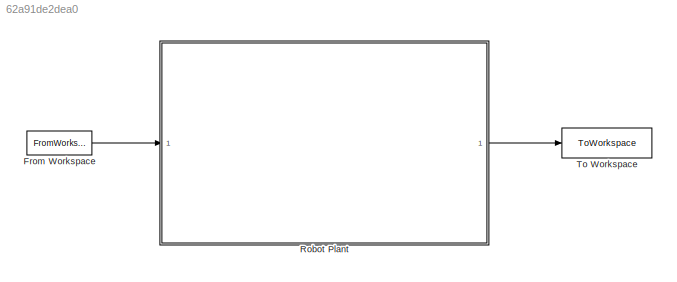
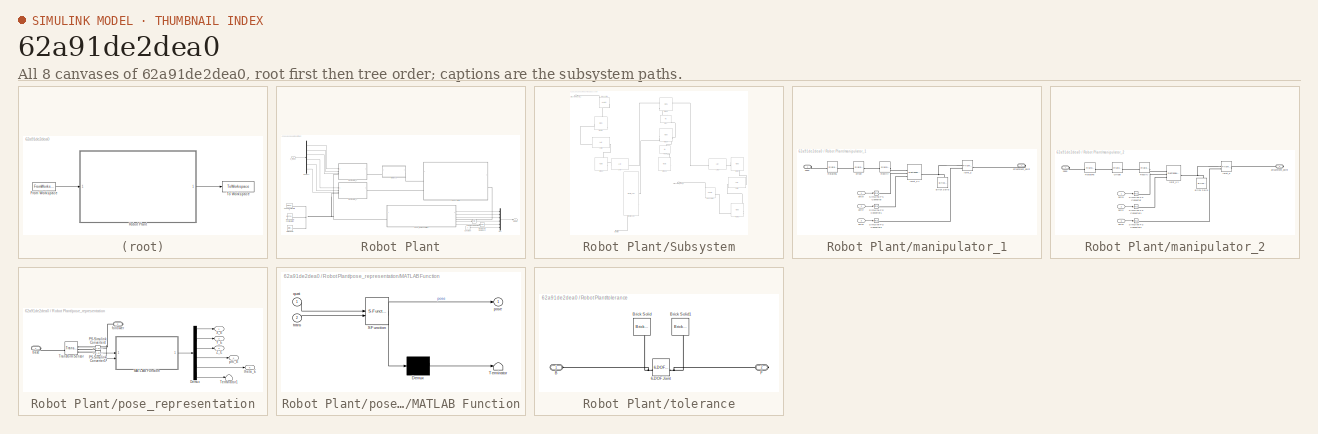
[diagram: thumbnail index - all 8 canvases of the model, root first then tree order]
MODEL slx_62a91de2dea0
KIND model
CONFIG AbsTol = 1e-4
CONFIG EnableMultiTasking = off
CONFIG FixedStep = 1e-4
CONFIG MaxStep = auto
CONFIG MinStep = auto
CONFIG RelTol = 1e-3
CONFIG SampleTimeConstraint = Unconstrained
CONFIG SolverName = ode15s
CONFIG StartTime = 0.0
CONFIG StopTime = 0.01
BLOCK [FromWorkspace] From Workspace
  VariableName = q_input
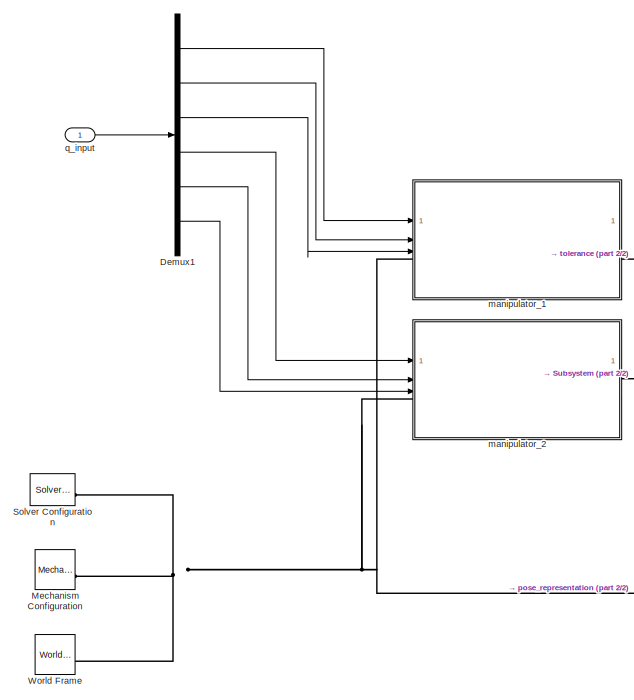
[diagram: Robot Plant - part 1/2, left side, full height]
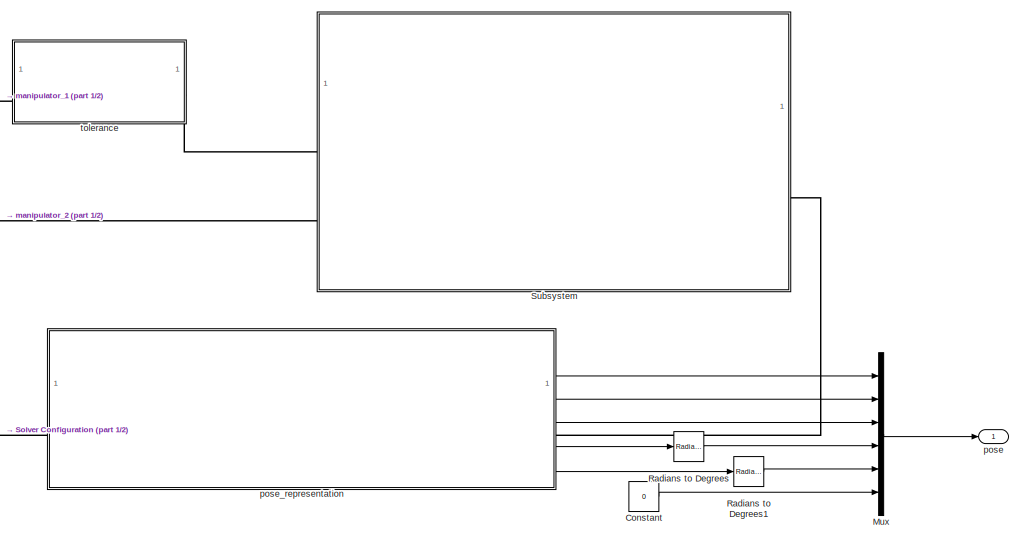
[diagram: Robot Plant - part 2/2, right side, full height]
BLOCK [SubSystem] Robot Plant
  TreatAsAtomicUnit = on
BLOCK [Constant] Robot Plant/Constant
  Value = 0
BLOCK [Demux] Robot Plant/Demux1
  Outputs = 6
BLOCK [Reference] Robot Plant/Mechanism Configuration  REF=sm_lib/Utilities/Mechanism
Configuration
  SourceBlock = sm_lib/Utilities/Mechanism\nConfiguration
  SourceType = Mechanism\nConfiguration
BLOCK [Mux] Robot Plant/Mux
  DisplayOption = bar
  Inputs = 6
BLOCK [Reference] Robot Plant/Radians to Degrees  REF=simulink_extras/Transformations/Radians
to Degrees
  SourceBlock = simulink_extras/Transformations/Radians\nto Degrees
  SourceType = RadiansToDegrees
BLOCK [Reference] Robot Plant/Radians to Degrees1  REF=simulink_extras/Transformations/Radians
to Degrees
  SourceBlock = simulink_extras/Transformations/Radians\nto Degrees
  SourceType = RadiansToDegrees
BLOCK [Reference] Robot Plant/Solver Configuration  REF=nesl_utility/Solver
Configuration
  SourceBlock = nesl_utility/Solver\nConfiguration
  SourceType = Solver\nConfiguration
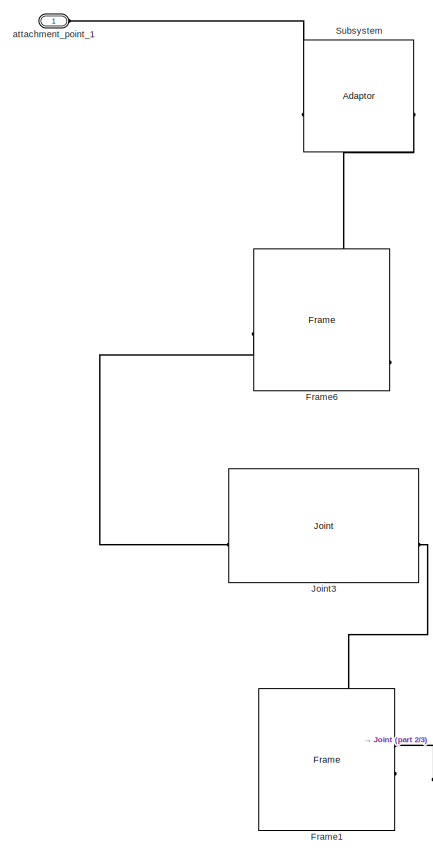
[diagram: Robot Plant/Subsystem - part 1/3, top left region]
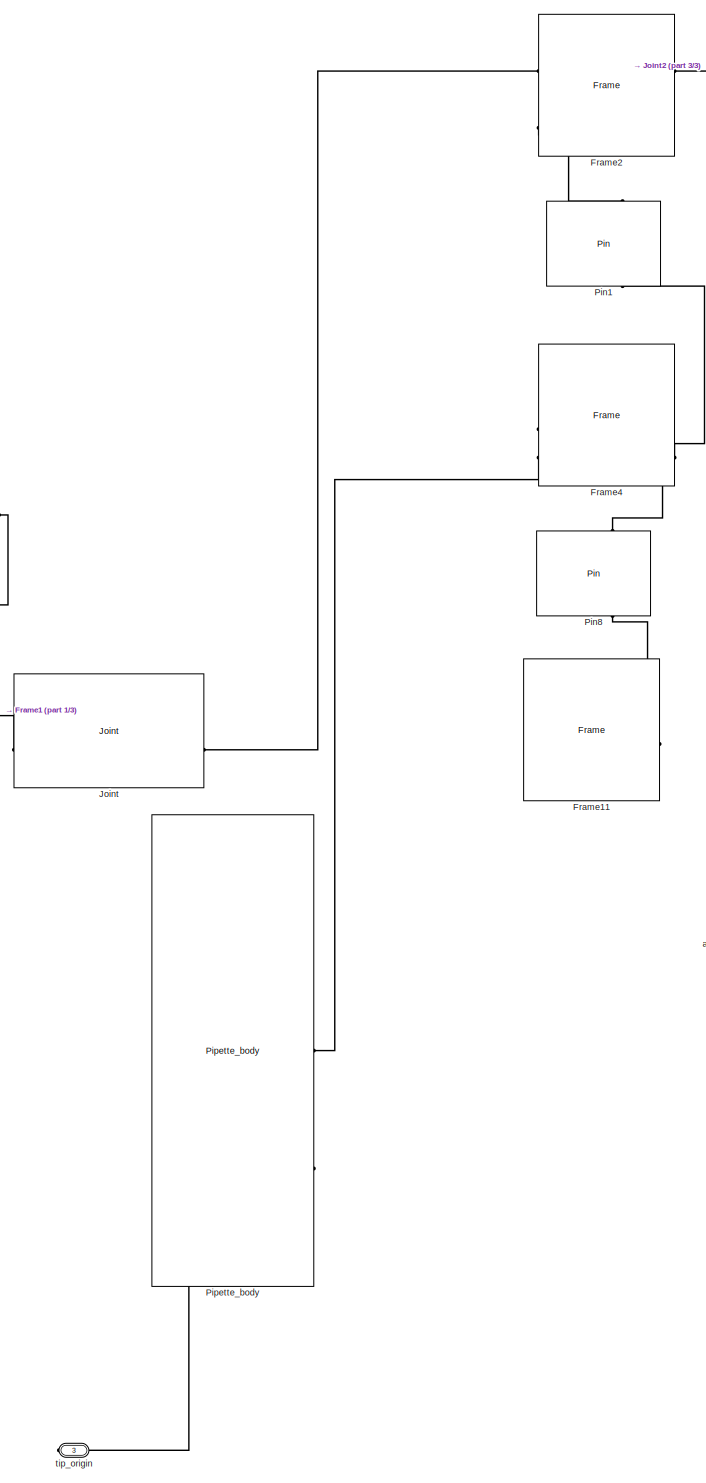
[diagram: Robot Plant/Subsystem - part 2/3, center side, full height]
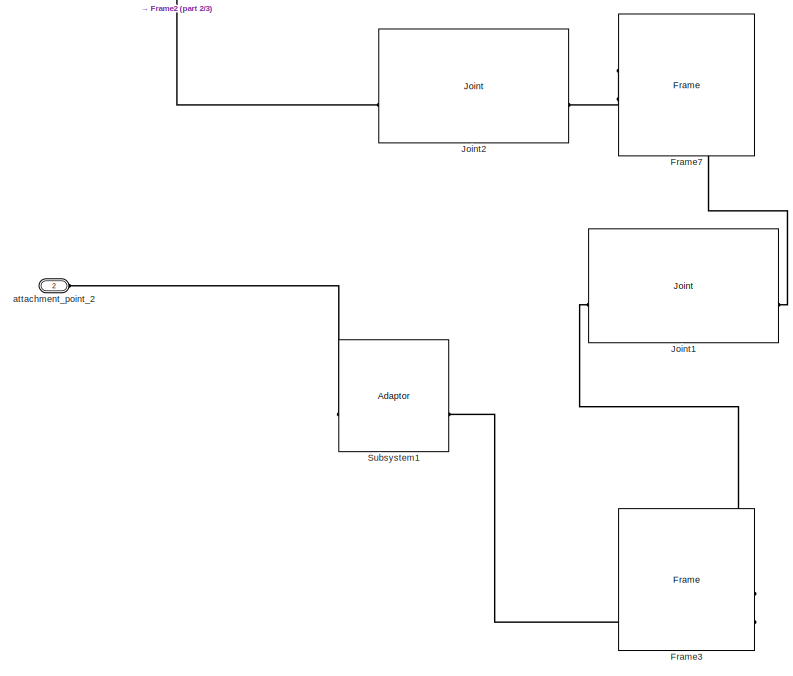
[diagram: Robot Plant/Subsystem - part 3/3, bottom right region]
BLOCK [SubSystem] Robot Plant/Subsystem
BLOCK [Reference] Robot Plant/Subsystem/Frame1  REF=mrex_hypercube_modules/Frame  (lib defined in slx_b86d9e98f719)
  SourceBlock = mrex_hypercube_modules/Frame
BLOCK [Reference] Robot Plant/Subsystem/Frame11  REF=mrex_hypercube_modules/Frame  (lib defined in slx_b86d9e98f719)
  SourceBlock = mrex_hypercube_modules/Frame
BLOCK [Reference] Robot Plant/Subsystem/Frame2  REF=mrex_hypercube_modules/Frame  (lib defined in slx_b86d9e98f719)
  SourceBlock = mrex_hypercube_modules/Frame
BLOCK [Reference] Robot Plant/Subsystem/Frame3  REF=mrex_hypercube_modules/Frame  (lib defined in slx_b86d9e98f719)
  SourceBlock = mrex_hypercube_modules/Frame
BLOCK [Reference] Robot Plant/Subsystem/Frame4  REF=mrex_hypercube_modules/Frame  (lib defined in slx_b86d9e98f719)
  SourceBlock = mrex_hypercube_modules/Frame
BLOCK [Reference] Robot Plant/Subsystem/Frame6  REF=mrex_hypercube_modules/Frame  (lib defined in slx_b86d9e98f719)
  SourceBlock = mrex_hypercube_modules/Frame
BLOCK [Reference] Robot Plant/Subsystem/Frame7  REF=mrex_hypercube_modules/Frame  (lib defined in slx_b86d9e98f719)
  SourceBlock = mrex_hypercube_modules/Frame
BLOCK [Reference] Robot Plant/Subsystem/Joint  REF=mrex_hypercube_modules/Joint  (lib defined in slx_b86d9e98f719)
  SourceBlock = mrex_hypercube_modules/Joint
BLOCK [Reference] Robot Plant/Subsystem/Joint1  REF=mrex_hypercube_modules/Joint  (lib defined in slx_b86d9e98f719)
  SourceBlock = mrex_hypercube_modules/Joint
BLOCK [Reference] Robot Plant/Subsystem/Joint2  REF=mrex_hypercube_modules/Joint  (lib defined in slx_b86d9e98f719)
  SourceBlock = mrex_hypercube_modules/Joint
BLOCK [Reference] Robot Plant/Subsystem/Joint3  REF=mrex_hypercube_modules/Joint  (lib defined in slx_b86d9e98f719)
  SourceBlock = mrex_hypercube_modules/Joint
BLOCK [Reference] Robot Plant/Subsystem/Pin1  REF=mrex_hypercube_modules/Pin  (lib defined in slx_b86d9e98f719)
  NameLocation = right
  SourceBlock = mrex_hypercube_modules/Pin
BLOCK [Reference] Robot Plant/Subsystem/Pin8  REF=mrex_hypercube_modules/Pin  (lib defined in slx_b86d9e98f719)
  NameLocation = right
  SourceBlock = mrex_hypercube_modules/Pin
BLOCK [Reference] Robot Plant/Subsystem/Pipette_body  REF=mrex_hypercube_modules/Pipette_body  (lib defined in slx_b86d9e98f719)
  SourceBlock = mrex_hypercube_modules/Pipette_body
BLOCK [Reference] Robot Plant/Subsystem/Subsystem  REF=mrex_hypercube_modules/Adaptor  (lib defined in slx_b86d9e98f719)
  SourceBlock = mrex_hypercube_modules/Adaptor
  SourceType = SubSystem
BLOCK [Reference] Robot Plant/Subsystem/Subsystem1  REF=mrex_hypercube_modules/Adaptor  (lib defined in slx_b86d9e98f719)
  SourceBlock = mrex_hypercube_modules/Adaptor
  SourceType = SubSystem
BLOCK [PMIOPort] Robot Plant/Subsystem/attachment_point_1
  Side = Left
BLOCK [PMIOPort] Robot Plant/Subsystem/attachment_point_2
  Port = 2
  Side = Left
BLOCK [PMIOPort] Robot Plant/Subsystem/tip_origin
  Port = 3
  Side = Right
BLOCK [Reference] Robot Plant/World Frame  REF=sm_lib/Frames and
Transforms/World Frame
  SourceBlock = sm_lib/Frames and\nTransforms/World Frame
  SourceType = World Frame
BLOCK [SubSystem] Robot Plant/manipulator_1
BLOCK [Reference] Robot Plant/manipulator_1/Brick Solid  REF=sm_lib/Body Elements/Brick Solid
  NameLocation = right
  SourceBlock = sm_lib/Body Elements/Brick Solid
  SourceType = Brick Solid
BLOCK [Reference] Robot Plant/manipulator_1/Rectify  REF=sm_lib/Frames and
Transforms/Rigid
Transform
  SourceBlock = sm_lib/Frames and\nTransforms/Rigid\nTransform
  SourceType = Rigid\nTransform
BLOCK [Reference] Robot Plant/manipulator_1/Rotate45  REF=sm_lib/Frames and
Transforms/Rigid
Transform
  SourceBlock = sm_lib/Frames and\nTransforms/Rigid\nTransform
  SourceType = Rigid\nTransform
BLOCK [Reference] Robot Plant/manipulator_1/Simulink-PS Converter  REF=nesl_utility/Simulink-PS
Converter
  SourceBlock = nesl_utility/Simulink-PS\nConverter
  SourceType = Simulink-PS\nConverter
BLOCK [Reference] Robot Plant/manipulator_1/Simulink-PS Converter1  REF=nesl_utility/Simulink-PS
Converter
  SourceBlock = nesl_utility/Simulink-PS\nConverter
  SourceType = Simulink-PS\nConverter
BLOCK [Reference] Robot Plant/manipulator_1/Simulink-PS Converter2  REF=nesl_utility/Simulink-PS
Converter
  SourceBlock = nesl_utility/Simulink-PS\nConverter
  SourceType = Simulink-PS\nConverter
BLOCK [PMIOPort] Robot Plant/manipulator_1/attachment_point
  Port = 2
  Side = Right
BLOCK [Inport] Robot Plant/manipulator_1/axisX
BLOCK [Inport] Robot Plant/manipulator_1/axisY
  Port = 2
BLOCK [Inport] Robot Plant/manipulator_1/axisZ
  Port = 3
BLOCK [PMIOPort] Robot Plant/manipulator_1/base
  Side = Left
BLOCK [Reference] Robot Plant/manipulator_1/joint_XY  REF=sm_lib/Joints/Rectangular
Joint
  SourceBlock = sm_lib/Joints/Rectangular\nJoint
  SourceType = Rectangular\nJoint
BLOCK [Reference] Robot Plant/manipulator_1/joint_Z  REF=sm_lib/Joints/Prismatic
Joint
  SourceBlock = sm_lib/Joints/Prismatic\nJoint
  SourceType = Prismatic\nJoint
BLOCK [Reference] Robot Plant/manipulator_1/offset  REF=sm_lib/Frames and
Transforms/Rigid
Transform
  SourceBlock = sm_lib/Frames and\nTransforms/Rigid\nTransform
  SourceType = Rigid\nTransform
BLOCK [SubSystem] Robot Plant/manipulator_2
BLOCK [Reference] Robot Plant/manipulator_2/Brick Solid  REF=sm_lib/Body Elements/Brick Solid
  NameLocation = right
  SourceBlock = sm_lib/Body Elements/Brick Solid
  SourceType = Brick Solid
BLOCK [Reference] Robot Plant/manipulator_2/Offset  REF=sm_lib/Frames and
Transforms/Rigid
Transform
  SourceBlock = sm_lib/Frames and\nTransforms/Rigid\nTransform
  SourceType = Rigid\nTransform
BLOCK [Reference] Robot Plant/manipulator_2/Rectify  REF=sm_lib/Frames and
Transforms/Rigid
Transform
  SourceBlock = sm_lib/Frames and\nTransforms/Rigid\nTransform
  SourceType = Rigid\nTransform
BLOCK [Reference] Robot Plant/manipulator_2/Rotate45  REF=sm_lib/Frames and
Transforms/Rigid
Transform
  SourceBlock = sm_lib/Frames and\nTransforms/Rigid\nTransform
  SourceType = Rigid\nTransform
BLOCK [Reference] Robot Plant/manipulator_2/Simulink-PS Converter  REF=nesl_utility/Simulink-PS
Converter
  SourceBlock = nesl_utility/Simulink-PS\nConverter
  SourceType = Simulink-PS\nConverter
BLOCK [Reference] Robot Plant/manipulator_2/Simulink-PS Converter1  REF=nesl_utility/Simulink-PS
Converter
  SourceBlock = nesl_utility/Simulink-PS\nConverter
  SourceType = Simulink-PS\nConverter
BLOCK [Reference] Robot Plant/manipulator_2/Simulink-PS Converter2  REF=nesl_utility/Simulink-PS
Converter
  SourceBlock = nesl_utility/Simulink-PS\nConverter
  SourceType = Simulink-PS\nConverter
BLOCK [PMIOPort] Robot Plant/manipulator_2/attachment_point
  Port = 2
  Side = Right
BLOCK [Inport] Robot Plant/manipulator_2/axisX
BLOCK [Inport] Robot Plant/manipulator_2/axisY
  Port = 2
BLOCK [Inport] Robot Plant/manipulator_2/axisZ
  Port = 3
BLOCK [PMIOPort] Robot Plant/manipulator_2/base
  Side = Left
BLOCK [Reference] Robot Plant/manipulator_2/joint_XY  REF=sm_lib/Joints/Rectangular
Joint
  SourceBlock = sm_lib/Joints/Rectangular\nJoint
  SourceType = Rectangular\nJoint
BLOCK [Reference] Robot Plant/manipulator_2/joint_Z  REF=sm_lib/Joints/Prismatic
Joint
  SourceBlock = sm_lib/Joints/Prismatic\nJoint
  SourceType = Prismatic\nJoint
BLOCK [Outport] Robot Plant/pose
BLOCK [SubSystem] Robot Plant/pose_representation
  PortSchema = {"entries":[{"content":{"sides":[{"content":{"connectorIds":["LConn1"]},"type":"ConnectorPlacement.EquallySpacedRectSide","uuid":"02e57747-24a3-4a3d-ac70-b9d8e16f9037"},{"content":{"connectorIds":["RConn1","Out1","Out2","Out3","Out4","Out5"],"side":"RIGHT"},"type":"ConnectorPlacement.EquallySpacedRectSide","uuid":"ddef7646-e4ed-4c4e-b109-c7fd03bfd576"},{"content":{"side":"TOP"},"type":"ConnectorPl...<+262ch>
BLOCK [Demux] Robot Plant/pose_representation/Demux
  Outputs = 6
BLOCK [SubSystem] Robot Plant/pose_representation/MATLAB Function
  ErrorFcn = Stateflow.Translate.translate
  PermitHierarchicalResolution = ExplicitOnly
  SFBlockType = MATLAB Function
  TreatAsAtomicUnit = on
BLOCK [Demux] Robot Plant/pose_representation/MATLAB Function/ Demux 
  Outputs = 1
BLOCK [S-Function] Robot Plant/pose_representation/MATLAB Function/ SFunction 
  EnableBusSupport = off
  FunctionName = sf_sfun
  PortCounts = [2 2]
  SFcnIsStateOwnerBlock = off
  SFunctionDeploymentMode = off
  Tag = Stateflow S-Function 2
BLOCK [Terminator] Robot Plant/pose_representation/MATLAB Function/ Terminator 
BLOCK [Outport] Robot Plant/pose_representation/MATLAB Function/pose
BLOCK [Inport] Robot Plant/pose_representation/MATLAB Function/quat
BLOCK [Inport] Robot Plant/pose_representation/MATLAB Function/trans
  Port = 2
BLOCK [Reference] Robot Plant/pose_representation/PS-Simulink Converter4  REF=nesl_utility/PS-Simulink
Converter
  SourceBlock = nesl_utility/PS-Simulink\nConverter
  SourceType = PS-Simulink\nConverter
BLOCK [Reference] Robot Plant/pose_representation/PS-Simulink Converter5  REF=nesl_utility/PS-Simulink
Converter
  SourceBlock = nesl_utility/PS-Simulink\nConverter
  SourceType = PS-Simulink\nConverter
BLOCK [Terminator] Robot Plant/pose_representation/Terminator1
BLOCK [Reference] Robot Plant/pose_representation/Transform Sensor  REF=sm_lib/Frames and
Transforms/Transform
Sensor
  SourceBlock = sm_lib/Frames and\nTransforms/Transform\nSensor
  SourceType = Transform\nSensor
BLOCK [Outport] Robot Plant/pose_representation/X_E
BLOCK [Outport] Robot Plant/pose_representation/Y_E
  Port = 2
BLOCK [Outport] Robot Plant/pose_representation/Z_E
  Port = 3
BLOCK [PMIOPort] Robot Plant/pose_representation/base
  Side = Left
BLOCK [PMIOPort] Robot Plant/pose_representation/follower
  Port = 2
  Side = Right
BLOCK [Outport] Robot Plant/pose_representation/phi_E
  Port = 4
BLOCK [Outport] Robot Plant/pose_representation/theta_E
  Port = 5
BLOCK [Inport] Robot Plant/q_input
BLOCK [SubSystem] Robot Plant/tolerance
BLOCK [Reference] Robot Plant/tolerance/6-DOF Joint  REF=sm_lib/Joints/6-DOF Joint
  SourceBlock = sm_lib/Joints/6-DOF Joint
  SourceType = 6-DOF Joint
BLOCK [PMIOPort] Robot Plant/tolerance/B
  Side = Left
BLOCK [Reference] Robot Plant/tolerance/Brick Solid  REF=sm_lib/Body Elements/Brick Solid
  NameLocation = left
  SourceBlock = sm_lib/Body Elements/Brick Solid
  SourceType = Brick Solid
BLOCK [Reference] Robot Plant/tolerance/Brick Solid1  REF=sm_lib/Body Elements/Brick Solid
  NameLocation = left
  SourceBlock = sm_lib/Body Elements/Brick Solid
  SourceType = Brick Solid
BLOCK [PMIOPort] Robot Plant/tolerance/F
  Port = 2
  Side = Right
BLOCK [ToWorkspace] To Workspace
  FixptAsFi = on
  MaxDataPoints = inf
  SampleTime = -1
  SaveFormat = Timeseries
  VariableName = pose
LINE From Workspace:1 -> Robot Plant:1
LINE Robot Plant/Constant:1 -> Robot Plant/Mux:6
LINE Robot Plant/Demux1:1 -> Robot Plant/manipulator_1:1
LINE Robot Plant/Demux1:2 -> Robot Plant/manipulator_1:2
LINE Robot Plant/Demux1:3 -> Robot Plant/manipulator_1:3
LINE Robot Plant/Demux1:4 -> Robot Plant/manipulator_2:1
LINE Robot Plant/Demux1:5 -> Robot Plant/manipulator_2:2
LINE Robot Plant/Demux1:6 -> Robot Plant/manipulator_2:3
LINE Robot Plant/Mux:1 -> Robot Plant/pose:1
LINE Robot Plant/Radians to Degrees1:1 -> Robot Plant/Mux:5
LINE Robot Plant/Radians to Degrees:1 -> Robot Plant/Mux:4
LINE Robot Plant/manipulator_1/axisX:1 -> Robot Plant/manipulator_1/Simulink-PS Converter:1
LINE Robot Plant/manipulator_1/axisY:1 -> Robot Plant/manipulator_1/Simulink-PS Converter1:1
LINE Robot Plant/manipulator_1/axisZ:1 -> Robot Plant/manipulator_1/Simulink-PS Converter2:1
LINE Robot Plant/manipulator_2/axisX:1 -> Robot Plant/manipulator_2/Simulink-PS Converter:1
LINE Robot Plant/manipulator_2/axisY:1 -> Robot Plant/manipulator_2/Simulink-PS Converter1:1
LINE Robot Plant/manipulator_2/axisZ:1 -> Robot Plant/manipulator_2/Simulink-PS Converter2:1
LINE Robot Plant/pose_representation/Demux:1 -> Robot Plant/pose_representation/X_E:1
LINE Robot Plant/pose_representation/Demux:2 -> Robot Plant/pose_representation/Y_E:1
LINE Robot Plant/pose_representation/Demux:3 -> Robot Plant/pose_representation/Z_E:1
LINE Robot Plant/pose_representation/Demux:4 -> Robot Plant/pose_representation/phi_E:1
LINE Robot Plant/pose_representation/Demux:5 -> Robot Plant/pose_representation/theta_E:1
LINE Robot Plant/pose_representation/Demux:6 -> Robot Plant/pose_representation/Terminator1:1
LINE Robot Plant/pose_representation/MATLAB Function:1 -> Robot Plant/pose_representation/Demux:1
LINE Robot Plant/pose_representation/PS-Simulink Converter4:1 -> Robot Plant/pose_representation/MATLAB Function:1
LINE Robot Plant/pose_representation/PS-Simulink Converter5:1 -> Robot Plant/pose_representation/MATLAB Function:2
LINE Robot Plant/pose_representation:1 -> Robot Plant/Mux:1
LINE Robot Plant/pose_representation:2 -> Robot Plant/Mux:2
LINE Robot Plant/pose_representation:3 -> Robot Plant/Mux:3
LINE Robot Plant/pose_representation:4 -> Robot Plant/Radians to Degrees:1
LINE Robot Plant/pose_representation:5 -> Robot Plant/Radians to Degrees1:1
LINE Robot Plant/q_input:1 -> Robot Plant/Demux1:1
LINE Robot Plant:1 -> To Workspace:1
PNET net1: Robot Plant/Mechanism Configuration:RConn1 -- Robot Plant/Solver Configuration:RConn1 -- Robot Plant/World Frame:RConn1 -- Robot Plant/manipulator_1:LConn1 -- Robot Plant/manipulator_2:LConn1 -- Robot Plant/pose_representation:LConn1
PLINE Robot Plant/Subsystem/Frame11:LConn2 -- Robot Plant/Subsystem/Pin8:LConn1
PLINE Robot Plant/Subsystem/Frame1:LConn1 -- Robot Plant/Subsystem/Joint:LConn1
PLINE Robot Plant/Subsystem/Frame1:LConn2 -- Robot Plant/Subsystem/Joint3:RConn1
PLINE Robot Plant/Subsystem/Frame2:LConn1 -- Robot Plant/Subsystem/Joint2:LConn1
PLINE Robot Plant/Subsystem/Frame2:RConn1 -- Robot Plant/Subsystem/Joint:RConn1
PLINE Robot Plant/Subsystem/Frame2:RConn3 -- Robot Plant/Subsystem/Pin1:RConn1
PLINE Robot Plant/Subsystem/Frame3:LConn2 -- Robot Plant/Subsystem/Joint1:LConn1
PLINE Robot Plant/Subsystem/Frame3:LConn3 -- Robot Plant/Subsystem/Subsystem1:RConn1
PLINE Robot Plant/Subsystem/Frame4:LConn3 -- Robot Plant/Subsystem/Pin1:LConn1
PLINE Robot Plant/Subsystem/Frame4:RConn2 -- Robot Plant/Subsystem/Pin8:RConn1
PLINE Robot Plant/Subsystem/Frame4:RConn3 -- Robot Plant/Subsystem/Pipette_body:RConn1
PLINE Robot Plant/Subsystem/Frame6:LConn3 -- Robot Plant/Subsystem/Subsystem:RConn1
PLINE Robot Plant/Subsystem/Frame6:RConn2 -- Robot Plant/Subsystem/Joint3:LConn1
PLINE Robot Plant/Subsystem/Frame7:RConn1 -- Robot Plant/Subsystem/Joint2:RConn1
PLINE Robot Plant/Subsystem/Frame7:RConn2 -- Robot Plant/Subsystem/Joint1:RConn1
PLINE Robot Plant/Subsystem/Pipette_body:RConn2 -- Robot Plant/Subsystem/tip_origin:RConn1
PLINE Robot Plant/Subsystem/Subsystem1:LConn1 -- Robot Plant/Subsystem/attachment_point_2:RConn1
PLINE Robot Plant/Subsystem/Subsystem:LConn1 -- Robot Plant/Subsystem/attachment_point_1:RConn1
PLINE Robot Plant/Subsystem:LConn1 -- Robot Plant/tolerance:RConn1
PLINE Robot Plant/Subsystem:LConn2 -- Robot Plant/manipulator_2:RConn1
PLINE Robot Plant/Subsystem:RConn1 -- Robot Plant/pose_representation:RConn1
PNET net2: Robot Plant/manipulator_1/Brick Solid:RConn1 -- Robot Plant/manipulator_1/joint_XY:RConn1 -- Robot Plant/manipulator_1/joint_Z:LConn1
PLINE Robot Plant/manipulator_1/Rectify:LConn1 -- Robot Plant/manipulator_1/offset:RConn1
PLINE Robot Plant/manipulator_1/Rectify:RConn1 -- Robot Plant/manipulator_1/joint_XY:LConn1
PLINE Robot Plant/manipulator_1/Rotate45:LConn1 -- Robot Plant/manipulator_1/base:RConn1
PLINE Robot Plant/manipulator_1/Rotate45:RConn1 -- Robot Plant/manipulator_1/offset:LConn1
PLINE Robot Plant/manipulator_1/Simulink-PS Converter1:RConn1 -- Robot Plant/manipulator_1/joint_XY:LConn3
PLINE Robot Plant/manipulator_1/Simulink-PS Converter2:RConn1 -- Robot Plant/manipulator_1/joint_Z:LConn2
PLINE Robot Plant/manipulator_1/Simulink-PS Converter:RConn1 -- Robot Plant/manipulator_1/joint_XY:LConn2
PLINE Robot Plant/manipulator_1/attachment_point:RConn1 -- Robot Plant/manipulator_1/joint_Z:RConn1
PLINE Robot Plant/manipulator_1:RConn1 -- Robot Plant/tolerance:LConn1
PNET net3: Robot Plant/manipulator_2/Brick Solid:RConn1 -- Robot Plant/manipulator_2/joint_XY:RConn1 -- Robot Plant/manipulator_2/joint_Z:LConn1
PLINE Robot Plant/manipulator_2/Offset:LConn1 -- Robot Plant/manipulator_2/Rotate45:RConn1
PLINE Robot Plant/manipulator_2/Offset:RConn1 -- Robot Plant/manipulator_2/Rectify:LConn1
PLINE Robot Plant/manipulator_2/Rectify:RConn1 -- Robot Plant/manipulator_2/joint_XY:LConn1
PLINE Robot Plant/manipulator_2/Rotate45:LConn1 -- Robot Plant/manipulator_2/base:RConn1
PLINE Robot Plant/manipulator_2/Simulink-PS Converter1:RConn1 -- Robot Plant/manipulator_2/joint_XY:LConn3
PLINE Robot Plant/manipulator_2/Simulink-PS Converter2:RConn1 -- Robot Plant/manipulator_2/joint_Z:LConn2
PLINE Robot Plant/manipulator_2/Simulink-PS Converter:RConn1 -- Robot Plant/manipulator_2/joint_XY:LConn2
PLINE Robot Plant/manipulator_2/attachment_point:RConn1 -- Robot Plant/manipulator_2/joint_Z:RConn1
PLINE Robot Plant/pose_representation/PS-Simulink Converter4:LConn1 -- Robot Plant/pose_representation/Transform Sensor:RConn2
PLINE Robot Plant/pose_representation/PS-Simulink Converter5:LConn1 -- Robot Plant/pose_representation/Transform Sensor:RConn3
PLINE Robot Plant/pose_representation/Transform Sensor:LConn1 -- Robot Plant/pose_representation/base:RConn1
PLINE Robot Plant/pose_representation/Transform Sensor:RConn1 -- Robot Plant/pose_representation/follower:RConn1
PNET net4: Robot Plant/tolerance/6-DOF Joint:LConn1 -- Robot Plant/tolerance/B:RConn1 -- Robot Plant/tolerance/Brick Solid:RConn1
PNET net5: Robot Plant/tolerance/6-DOF Joint:RConn1 -- Robot Plant/tolerance/Brick Solid1:RConn1 -- Robot Plant/tolerance/F:RConn1
note: PNET lines group multi-terminal physical nets as a canonical sorted terminal list (undirected conserving connections); 2-terminal nets keep the pairwise PLINE form
CHART Robot Plant/pose_representation/MATLAB Function states=1 transitions=1
  STATE_LABEL 'eML_blk_kernel()'
  STATE_LABEL "SCRIPT:\nfunction pose = TransformToPose(quat, trans)\n% 输入:\n%   trans: 3x1 Translation 向量 [x; y; z]\n%   quat:  4x1 Quaternion 向量 [w; x; y; z]\n% 输出:\n%   pose: 6x1 位姿向量 [x, y, z, φ, θ, ψ]\n\n% 重组四元数（Simscape 输出为 [w, x, y, z]）\nq = quaternion(quat(1), quat(2), quat(3), quat(4)); \n\n% 转换为欧拉角（ZYX顺序 → [yaw, pitch, roll]）\neulZYX = eulerd(q, 'ZYX', 'frame');  % 单位为度\n\n% 转换为 [φ, θ, ψ] = [roll, pitch, yaw]，并转为弧度\n...<+103ch>"
CHART  states=0 transitions=0
